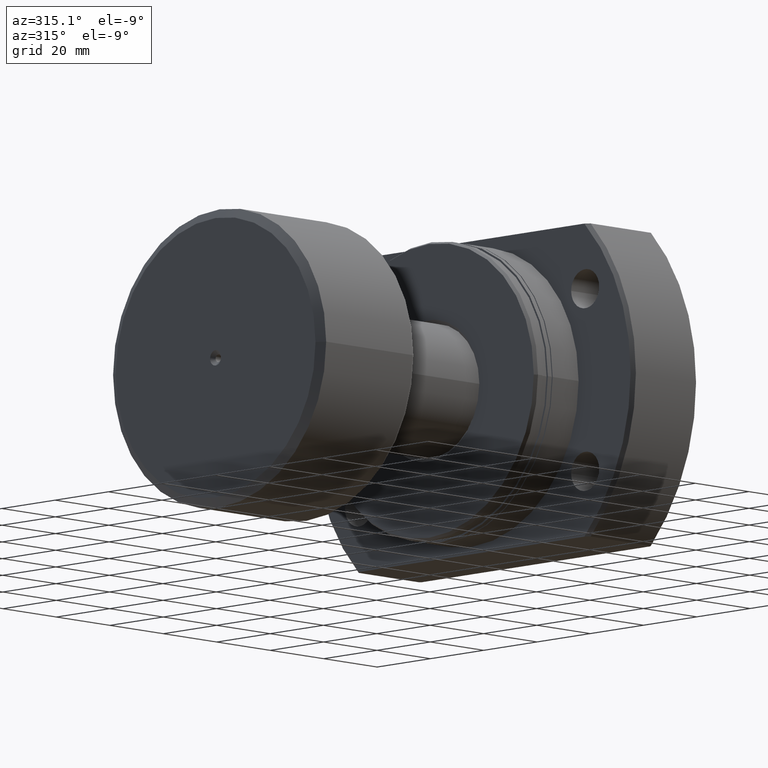
[diagram: clean part render]
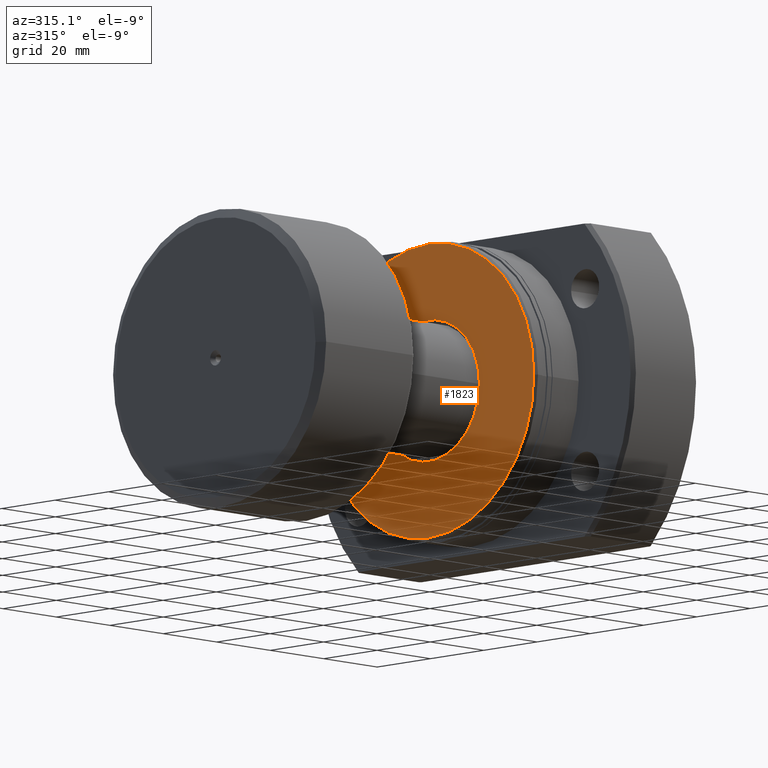
[diagram: same view with one face highlighted and labeled with its STEP entity id]
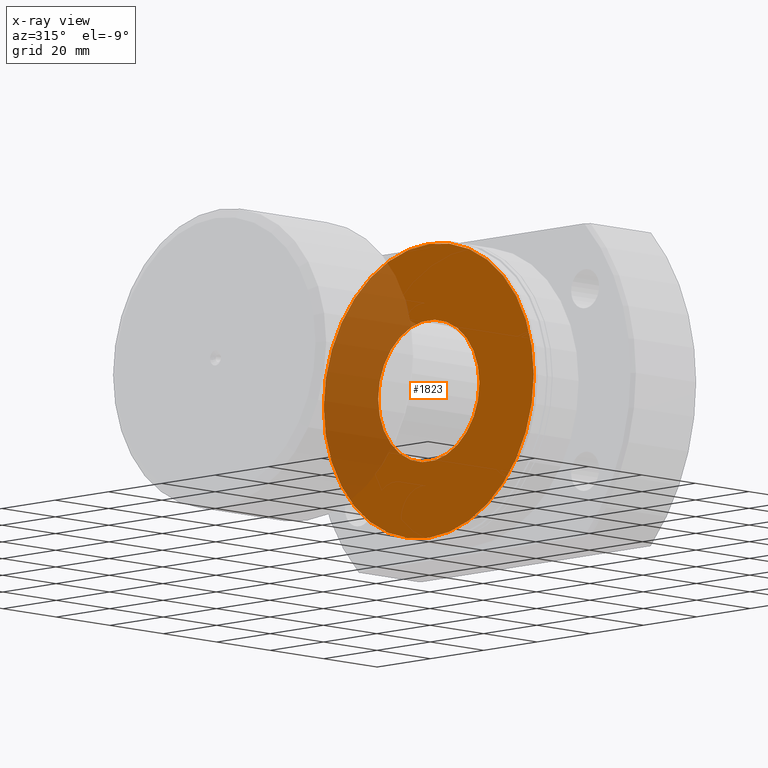
[diagram: x-ray of the same camera — body ghosted, the highlighted face saturated]
A machine part, auxiliary view. The second image highlights one B-rep face of the part: STEP entity #1823.
The next image is the same camera in x-ray: the body ghosted, the highlighted face saturated — about 32% of this face is hidden behind the body in this view.
In plain terms, the highlighted planar face has unit normal (1, 0, 0).
Its self-contained STEP definition (entity closure, byte-faithful):
#49 = CARTESIAN_POINT ( 'NONE',  ( 5.053377728867717670E-15, 39.42264973081037027, 0.000000000000000000 ) ) ;
#125 = DIRECTION ( 'NONE',  ( 1.000000000000000000, 4.782824563834189405E-17, -0.000000000000000000 ) ) ;
#132 = EDGE_LOOP ( 'NONE', ( #2273, #2020 ) ) ;
#229 = AXIS2_PLACEMENT_3D ( 'NONE', #2937, #733, #1702 ) ;
#287 = CARTESIAN_POINT ( 'NONE',  ( 6.938893903907228378E-15, 3.851859888774471706E-31, 0.000000000000000000 ) ) ;
#535 = CIRCLE ( 'NONE', #2366, 39.42264973081037027 ) ;
#733 = DIRECTION ( 'NONE',  ( 1.000000000000000000, 4.782824563834189405E-17, -0.000000000000000000 ) ) ;
#936 = VERTEX_POINT ( 'NONE', #1915 ) ;
#1054 = AXIS2_PLACEMENT_3D ( 'NONE', #2622, #125, #1647 ) ;
#1120 = DIRECTION ( 'NONE',  ( -4.782824563834189405E-17, 1.000000000000000000, 0.000000000000000000 ) ) ;
#1125 = CARTESIAN_POINT ( 'NONE',  ( 2.338544740805865854E-15, -18.99999999999943157, 0.000000000000000000 ) ) ;
#1226 = EDGE_CURVE ( 'NONE', #2174, #936, #2155, .T. ) ;
#1277 = CARTESIAN_POINT ( 'NONE',  ( 6.938893903907228378E-15, 3.851859888774471706E-31, 0.000000000000000000 ) ) ;
#1291 = DIRECTION ( 'NONE',  ( -4.782824563834187556E-17, 1.000000000000000000, 0.000000000000000000 ) ) ;
#1578 = CARTESIAN_POINT ( 'NONE',  ( 8.824410078946739874E-15, -39.42264973081037027, 4.863234688631915496E-15 ) ) ;
#1647 = DIRECTION ( 'NONE',  ( -4.782824563834189405E-17, 1.000000000000000000, 0.000000000000000000 ) ) ;
#1702 = DIRECTION ( 'NONE',  ( -4.782824563834189405E-17, 1.000000000000000000, 0.000000000000000000 ) ) ;
#1721 = DIRECTION ( 'NONE',  ( -4.782824563834187556E-17, 1.000000000000000000, 0.000000000000000000 ) ) ;
#1770 = DIRECTION ( 'NONE',  ( 1.000000000000000000, 4.782824563834189405E-17, -0.000000000000000000 ) ) ;
#1823 = ADVANCED_FACE ( 'NONE', ( #2222, #2235 ), #2964, .F. ) ;
#1850 = CIRCLE ( 'NONE', #2369, 39.42264973081037027 ) ;
#1870 = ORIENTED_EDGE ( 'NONE', *, *, #3189, .F. ) ;
#1915 = CARTESIAN_POINT ( 'NONE',  ( 6.038212648290587597E-16, 19.00000000000052935, 2.326828918380036051E-15 ) ) ;
#2020 = ORIENTED_EDGE ( 'NONE', *, *, #2555, .T. ) ;
#2155 = CIRCLE ( 'NONE', #2255, 19.00000000000052935 ) ;
#2174 = VERTEX_POINT ( 'NONE', #1125 ) ;
#2222 = FACE_BOUND ( 'NONE', #132, .T. ) ;
#2235 = FACE_OUTER_BOUND ( 'NONE', #2969, .T. ) ;
#2255 = AXIS2_PLACEMENT_3D ( 'NONE', #2313, #2571, #1120 ) ;
#2273 = ORIENTED_EDGE ( 'NONE', *, *, #1226, .T. ) ;
#2313 = CARTESIAN_POINT ( 'NONE',  ( 1.471183002817462307E-15, -3.879172424281811273E-29, 0.000000000000000000 ) ) ;
#2328 = ORIENTED_EDGE ( 'NONE', *, *, #3222, .F. ) ;
#2366 = AXIS2_PLACEMENT_3D ( 'NONE', #287, #1770, #1721 ) ;
#2369 = AXIS2_PLACEMENT_3D ( 'NONE', #1277, #2473, #1291 ) ;
#2473 = DIRECTION ( 'NONE',  ( 1.000000000000000000, 4.782824563834189405E-17, -0.000000000000000000 ) ) ;
#2555 = EDGE_CURVE ( 'NONE', #936, #2174, #2778, .T. ) ;
#2571 = DIRECTION ( 'NONE',  ( 1.000000000000000000, 4.782824563834189405E-17, -0.000000000000000000 ) ) ;
#2622 = CARTESIAN_POINT ( 'NONE',  ( 1.471183002817462307E-15, -3.879172424281811273E-29, 0.000000000000000000 ) ) ;
#2778 = CIRCLE ( 'NONE', #1054, 19.00000000000052935 ) ;
#2875 = VERTEX_POINT ( 'NONE', #1578 ) ;
#2937 = CARTESIAN_POINT ( 'NONE',  ( 1.471183002817414384E-15, 7.036410203770473457E-32, 0.000000000000000000 ) ) ;
#2964 = PLANE ( 'NONE',  #229 ) ;
#2969 = EDGE_LOOP ( 'NONE', ( #2328, #1870 ) ) ;
#3189 = EDGE_CURVE ( 'NONE', #2875, #3225, #535, .T. ) ;
#3222 = EDGE_CURVE ( 'NONE', #3225, #2875, #1850, .T. ) ;
#3225 = VERTEX_POINT ( 'NONE', #49 ) ;